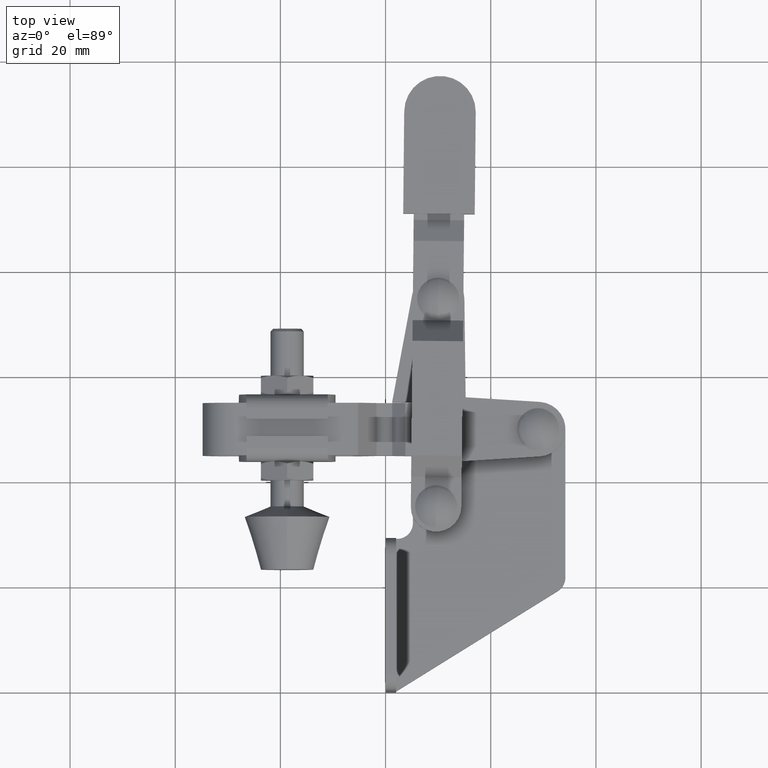
[diagram: clean part render]
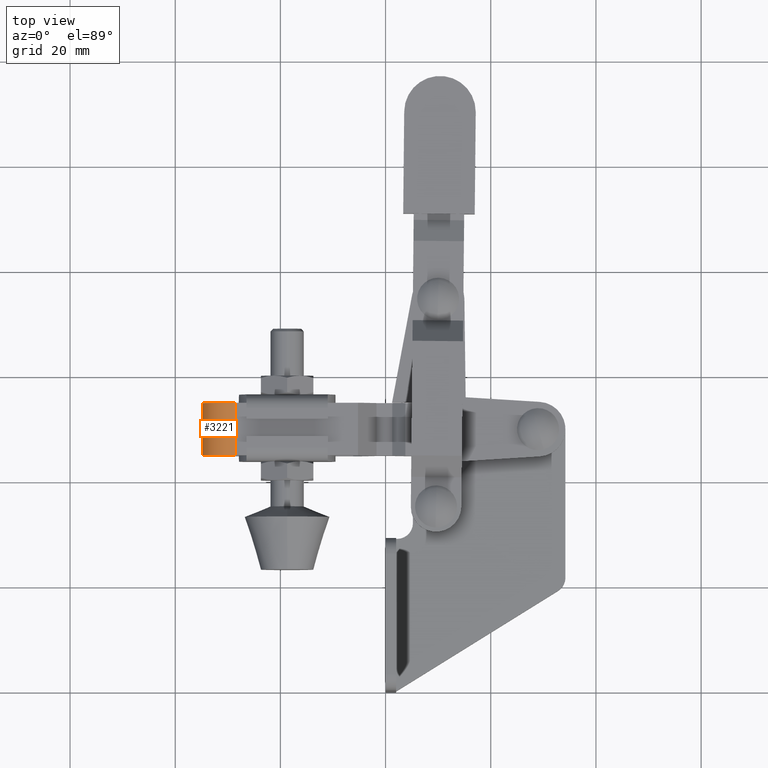
[diagram: same view with one face highlighted and labeled with its STEP entity id]
A machine part, top view. The second image highlights one B-rep face of the part: STEP entity #3221.
In plain terms, the highlighted cylindrical surface (edge-blend (fillet) strip) has radius 6.2 mm, axis along (0, -1, 0).
Its self-contained STEP definition (entity closure, byte-faithful):
#75 = CARTESIAN_POINT ( 'NONE',  ( -28.59999999999983400, 54.82999999999992000, 6.200000000000007300 ) ) ;
#313 = DIRECTION ( 'NONE',  ( -1.037039377982384700E-016, 1.000000000000000000, -2.919468386120116100E-018 ) ) ;
#629 = CARTESIAN_POINT ( 'NONE',  ( -28.59999999999983400, 56.10999999999992100, -9.465128674212887900E-016 ) ) ;
#1079 = CYLINDRICAL_SURFACE ( 'NONE', #9072, 6.200000000000010800 ) ;
#1226 = DIRECTION ( 'NONE',  ( -1.000000000000000000, 0.0000000000000000000, 6.864756436235599100E-018 ) ) ;
#1716 = DIRECTION ( 'NONE',  ( 1.037039377982384700E-016, -1.000000000000000000, 2.919468386120116100E-018 ) ) ;
#1933 = CARTESIAN_POINT ( 'NONE',  ( -28.59999999999983400, 44.82999999999992000, 6.200000000000007300 ) ) ;
#2119 = EDGE_CURVE ( 'NONE', #8230, #2896, #6309, .T. ) ;
#2583 = CARTESIAN_POINT ( 'NONE',  ( -28.59999999999983400, 54.82999999999992000, -9.427759478870550400E-016 ) ) ;
#2801 = DIRECTION ( 'NONE',  ( 1.037039377982384700E-016, -1.000000000000000000, 2.919468386120116100E-018 ) ) ;
#2896 = VERTEX_POINT ( 'NONE', #5721 ) ;
#2903 = DIRECTION ( 'NONE',  ( -1.000000000000000000, 0.0000000000000000000, 6.864756436235599100E-018 ) ) ;
#3138 = ORIENTED_EDGE ( 'NONE', *, *, #5394, .T. ) ;
#3221 = ADVANCED_FACE ( 'NONE', ( #4419 ), #1079, .T. ) ;
#3354 = CARTESIAN_POINT ( 'NONE',  ( -28.59999999999983400, 44.82999999999992000, -9.135812640258539300E-016 ) ) ;
#3587 = CARTESIAN_POINT ( 'NONE',  ( -28.59999999999983400, 56.10999999999992100, 6.200000000000007300 ) ) ;
#3602 = DIRECTION ( 'NONE',  ( 1.037039377982384700E-016, -1.000000000000000000, 2.919468386120116100E-018 ) ) ;
#3669 = AXIS2_PLACEMENT_3D ( 'NONE', #3354, #313, #9533 ) ;
#4020 = ORIENTED_EDGE ( 'NONE', *, *, #5043, .T. ) ;
#4419 = FACE_OUTER_BOUND ( 'NONE', #9111, .T. ) ;
#5043 = EDGE_CURVE ( 'NONE', #5954, #8230, #8131, .T. ) ;
#5311 = AXIS2_PLACEMENT_3D ( 'NONE', #2583, #2801, #2903 ) ;
#5394 = EDGE_CURVE ( 'NONE', #2896, #8704, #9718, .T. ) ;
#5499 = DIRECTION ( 'NONE',  ( 1.037039377982384700E-016, -1.000000000000000000, 2.919468386120116100E-018 ) ) ;
#5721 = CARTESIAN_POINT ( 'NONE',  ( -34.79999999999984800, 44.82999999999992000, -8.856171160517936800E-016 ) ) ;
#5755 = ORIENTED_EDGE ( 'NONE', *, *, #2119, .T. ) ;
#5954 = VERTEX_POINT ( 'NONE', #75 ) ;
#6281 = CARTESIAN_POINT ( 'NONE',  ( -34.79999999999984800, 56.10999999999992100, -9.039513775166281800E-016 ) ) ;
#6309 = LINE ( 'NONE', #6281, #7308 ) ;
#7308 = VECTOR ( 'NONE', #5499, 1000.000000000000000 ) ;
#7626 = ORIENTED_EDGE ( 'NONE', *, *, #9793, .F. ) ;
#8131 = CIRCLE ( 'NONE', #5311, 6.200000000000010800 ) ;
#8230 = VERTEX_POINT ( 'NONE', #9212 ) ;
#8270 = LINE ( 'NONE', #3587, #10042 ) ;
#8704 = VERTEX_POINT ( 'NONE', #1933 ) ;
#9072 = AXIS2_PLACEMENT_3D ( 'NONE', #629, #1716, #1226 ) ;
#9111 = EDGE_LOOP ( 'NONE', ( #4020, #5755, #3138, #7626 ) ) ;
#9212 = CARTESIAN_POINT ( 'NONE',  ( -34.79999999999984800, 54.82999999999992000, -8.856171160517936800E-016 ) ) ;
#9533 = DIRECTION ( 'NONE',  ( 1.000000000000000000, 0.0000000000000000000, -6.864756436235595300E-018 ) ) ;
#9718 = CIRCLE ( 'NONE', #3669, 6.200000000000014400 ) ;
#9793 = EDGE_CURVE ( 'NONE', #5954, #8704, #8270, .T. ) ;
#10042 = VECTOR ( 'NONE', #3602, 1000.000000000000000 ) ;